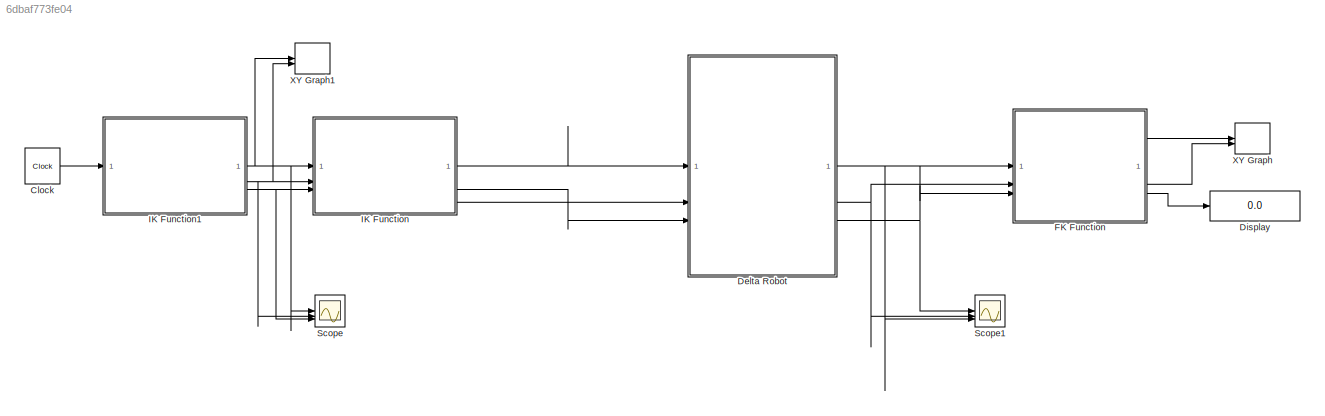
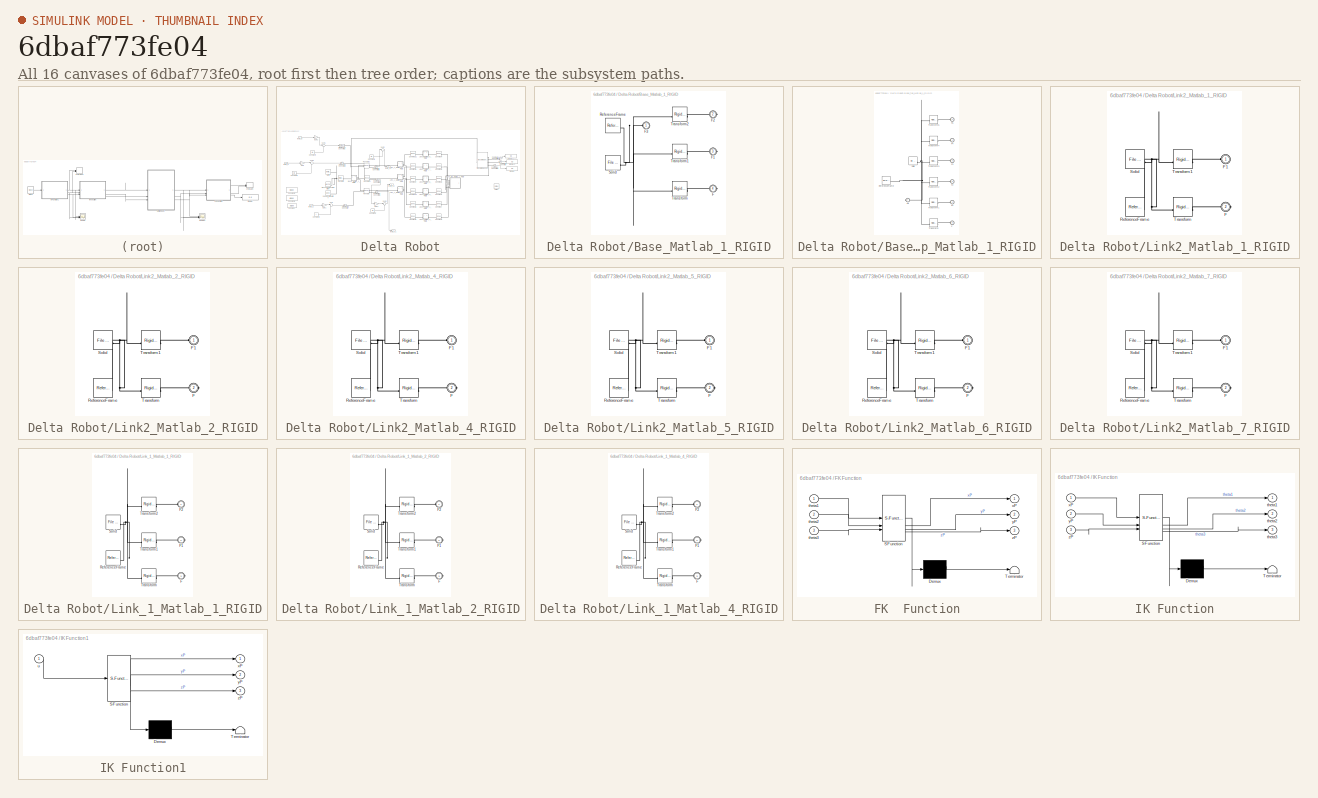
[diagram: thumbnail index - all 16 canvases of the model, root first then tree order]
MODEL slx_6dbaf773fe04
KIND model
CONFIG AbsTol = auto
CONFIG EnableMultiTasking = off
CONFIG FixedStep = auto
CONFIG MaxStep = auto
CONFIG MinStep = auto
CONFIG RelTol = 1
CONFIG SampleTimeConstraint = Unconstrained
CONFIG SolverName = VariableStepAuto
CONFIG StartTime = 0.0
CONFIG StopTime = 20
WORKSPACE source: external: MATLAB File  (data not in archive)
BLOCK [Clock] Clock
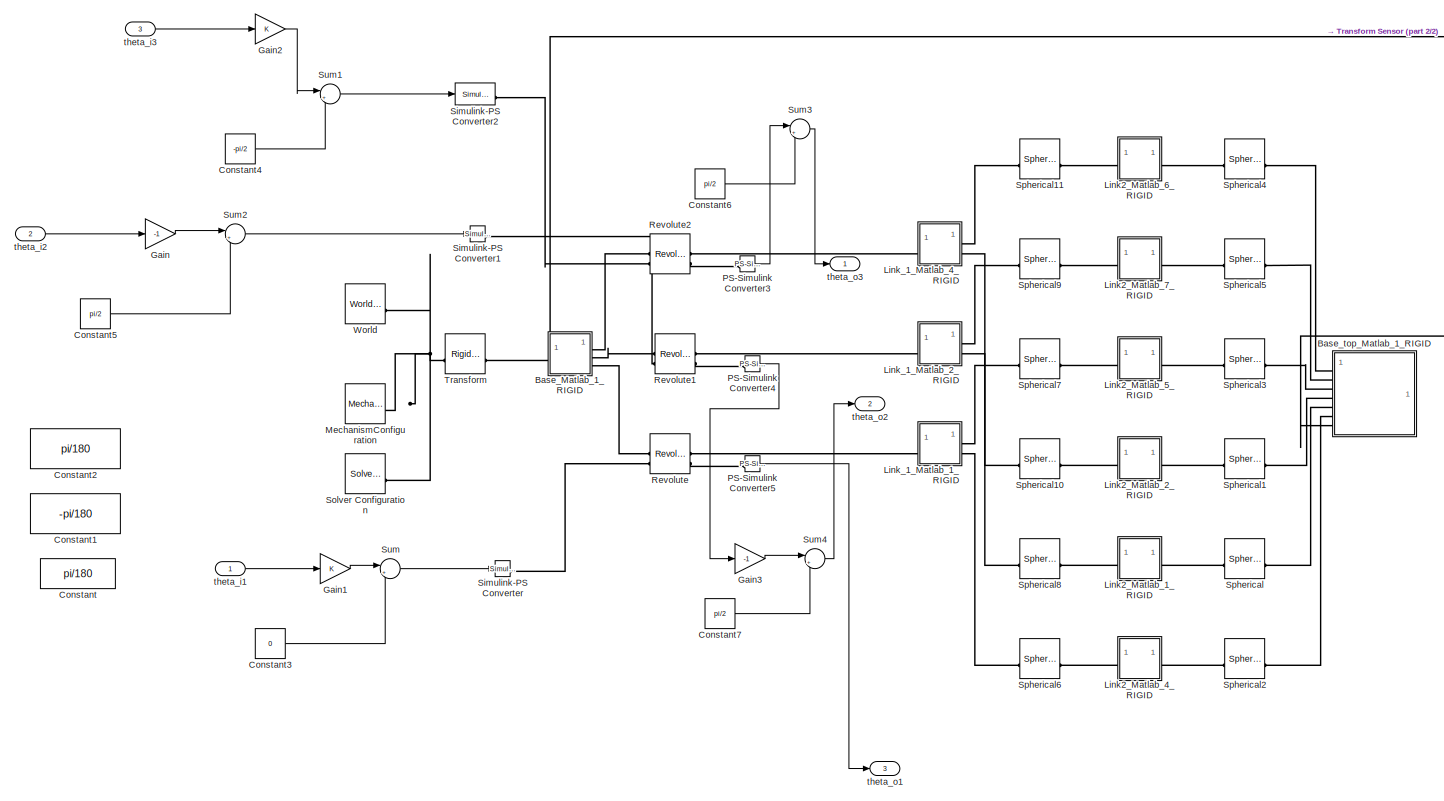
[diagram: Delta Robot - part 1/2, most of the canvas]
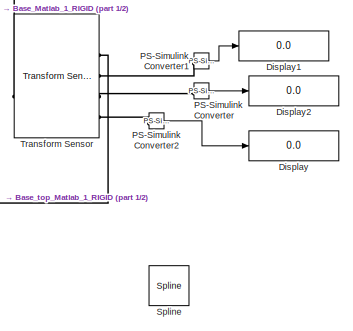
[diagram: Delta Robot - part 2/2, middle right region]
BLOCK [SubSystem] Delta Robot
BLOCK [SubSystem] Delta Robot/Base_Matlab_1_RIGID
BLOCK [PMIOPort] Delta Robot/Base_Matlab_1_RIGID/F
  Port = 4
  Side = Right
BLOCK [PMIOPort] Delta Robot/Base_Matlab_1_RIGID/F1
  Port = 3
  Side = Right
BLOCK [PMIOPort] Delta Robot/Base_Matlab_1_RIGID/F2
  Port = 2
  Side = Right
BLOCK [PMIOPort] Delta Robot/Base_Matlab_1_RIGID/F3
  Side = Left
BLOCK [Reference] Delta Robot/Base_Matlab_1_RIGID/ReferenceFrame  REF=sm_lib/Frames and
Transforms/Reference
Frame
  SourceBlock = sm_lib/Frames and\nTransforms/Reference\nFrame
  SourceType = Reference\nFrame
BLOCK [Reference] Delta Robot/Base_Matlab_1_RIGID/Solid  REF=sm_lib/Body Elements/File Solid
  SourceBlock = sm_lib/Body Elements/File Solid
  SourceType = File Solid
BLOCK [Reference] Delta Robot/Base_Matlab_1_RIGID/Transform  REF=sm_lib/Frames and
Transforms/Rigid
Transform
  SourceBlock = sm_lib/Frames and\nTransforms/Rigid\nTransform
  SourceType = Rigid\nTransform
BLOCK [Reference] Delta Robot/Base_Matlab_1_RIGID/Transform1  REF=sm_lib/Frames and
Transforms/Rigid
Transform
  SourceBlock = sm_lib/Frames and\nTransforms/Rigid\nTransform
  SourceType = Rigid\nTransform
BLOCK [Reference] Delta Robot/Base_Matlab_1_RIGID/Transform2  REF=sm_lib/Frames and
Transforms/Rigid
Transform
  SourceBlock = sm_lib/Frames and\nTransforms/Rigid\nTransform
  SourceType = Rigid\nTransform
BLOCK [SubSystem] Delta Robot/Base_top_Matlab_1_RIGID
BLOCK [PMIOPort] Delta Robot/Base_top_Matlab_1_RIGID/F
  Port = 5
  Side = Left
BLOCK [PMIOPort] Delta Robot/Base_top_Matlab_1_RIGID/F1
  Port = 4
  Side = Left
BLOCK [PMIOPort] Delta Robot/Base_top_Matlab_1_RIGID/F2
  Port = 6
  Side = Left
BLOCK [PMIOPort] Delta Robot/Base_top_Matlab_1_RIGID/F3
  Port = 3
  Side = Left
BLOCK [PMIOPort] Delta Robot/Base_top_Matlab_1_RIGID/F4
  Side = Left
BLOCK [PMIOPort] Delta Robot/Base_top_Matlab_1_RIGID/F5
  Port = 2
  Side = Left
BLOCK [PMIOPort] Delta Robot/Base_top_Matlab_1_RIGID/F6
  Port = 7
  Side = Left
BLOCK [Reference] Delta Robot/Base_top_Matlab_1_RIGID/ReferenceFrame  REF=sm_lib/Frames and
Transforms/Reference
Frame
  SourceBlock = sm_lib/Frames and\nTransforms/Reference\nFrame
  SourceType = Reference\nFrame
BLOCK [Reference] Delta Robot/Base_top_Matlab_1_RIGID/Solid  REF=sm_lib/Body Elements/File Solid
  SourceBlock = sm_lib/Body Elements/File Solid
  SourceType = File Solid
BLOCK [Reference] Delta Robot/Base_top_Matlab_1_RIGID/Transform  REF=sm_lib/Frames and
Transforms/Rigid
Transform
  SourceBlock = sm_lib/Frames and\nTransforms/Rigid\nTransform
  SourceType = Rigid\nTransform
BLOCK [Reference] Delta Robot/Base_top_Matlab_1_RIGID/Transform1  REF=sm_lib/Frames and
Transforms/Rigid
Transform
  SourceBlock = sm_lib/Frames and\nTransforms/Rigid\nTransform
  SourceType = Rigid\nTransform
BLOCK [Reference] Delta Robot/Base_top_Matlab_1_RIGID/Transform2  REF=sm_lib/Frames and
Transforms/Rigid
Transform
  SourceBlock = sm_lib/Frames and\nTransforms/Rigid\nTransform
  SourceType = Rigid\nTransform
BLOCK [Reference] Delta Robot/Base_top_Matlab_1_RIGID/Transform3  REF=sm_lib/Frames and
Transforms/Rigid
Transform
  SourceBlock = sm_lib/Frames and\nTransforms/Rigid\nTransform
  SourceType = Rigid\nTransform
BLOCK [Reference] Delta Robot/Base_top_Matlab_1_RIGID/Transform4  REF=sm_lib/Frames and
Transforms/Rigid
Transform
  SourceBlock = sm_lib/Frames and\nTransforms/Rigid\nTransform
  SourceType = Rigid\nTransform
BLOCK [Reference] Delta Robot/Base_top_Matlab_1_RIGID/Transform5  REF=sm_lib/Frames and
Transforms/Rigid
Transform
  SourceBlock = sm_lib/Frames and\nTransforms/Rigid\nTransform
  SourceType = Rigid\nTransform
BLOCK [Constant] Delta Robot/Constant
  Commented = on
  Value = pi/180
BLOCK [Constant] Delta Robot/Constant1
  Commented = on
  Value = -pi/180
BLOCK [Constant] Delta Robot/Constant2
  Commented = on
  Value = pi/180
BLOCK [Constant] Delta Robot/Constant3
  Value = 0
BLOCK [Constant] Delta Robot/Constant4
  Value = -pi/2
BLOCK [Constant] Delta Robot/Constant5
  Value = pi/2
BLOCK [Constant] Delta Robot/Constant6
  Value = pi/2
BLOCK [Constant] Delta Robot/Constant7
  Value = pi/2
BLOCK [Display] Delta Robot/Display
  Decimation = 1
BLOCK [Display] Delta Robot/Display1
  Decimation = 1
BLOCK [Display] Delta Robot/Display2
  Decimation = 1
BLOCK [Gain] Delta Robot/Gain
  Gain = -1
BLOCK [Gain] Delta Robot/Gain1
BLOCK [Gain] Delta Robot/Gain2
BLOCK [Gain] Delta Robot/Gain3
  Gain = -1
BLOCK [SubSystem] Delta Robot/Link2_Matlab_1_RIGID
BLOCK [PMIOPort] Delta Robot/Link2_Matlab_1_RIGID/F
  Port = 2
  Side = Right
BLOCK [PMIOPort] Delta Robot/Link2_Matlab_1_RIGID/F1
  Side = Left
BLOCK [Reference] Delta Robot/Link2_Matlab_1_RIGID/ReferenceFrame  REF=sm_lib/Frames and
Transforms/Reference
Frame
  SourceBlock = sm_lib/Frames and\nTransforms/Reference\nFrame
  SourceType = Reference\nFrame
BLOCK [Reference] Delta Robot/Link2_Matlab_1_RIGID/Solid  REF=sm_lib/Body Elements/File Solid
  SourceBlock = sm_lib/Body Elements/File Solid
  SourceType = File Solid
BLOCK [Reference] Delta Robot/Link2_Matlab_1_RIGID/Transform  REF=sm_lib/Frames and
Transforms/Rigid
Transform
  SourceBlock = sm_lib/Frames and\nTransforms/Rigid\nTransform
  SourceType = Rigid\nTransform
BLOCK [Reference] Delta Robot/Link2_Matlab_1_RIGID/Transform1  REF=sm_lib/Frames and
Transforms/Rigid
Transform
  SourceBlock = sm_lib/Frames and\nTransforms/Rigid\nTransform
  SourceType = Rigid\nTransform
BLOCK [SubSystem] Delta Robot/Link2_Matlab_2_RIGID
BLOCK [PMIOPort] Delta Robot/Link2_Matlab_2_RIGID/F
  Port = 2
  Side = Right
BLOCK [PMIOPort] Delta Robot/Link2_Matlab_2_RIGID/F1
  Side = Left
BLOCK [Reference] Delta Robot/Link2_Matlab_2_RIGID/ReferenceFrame  REF=sm_lib/Frames and
Transforms/Reference
Frame
  SourceBlock = sm_lib/Frames and\nTransforms/Reference\nFrame
  SourceType = Reference\nFrame
BLOCK [Reference] Delta Robot/Link2_Matlab_2_RIGID/Solid  REF=sm_lib/Body Elements/File Solid
  SourceBlock = sm_lib/Body Elements/File Solid
  SourceType = File Solid
BLOCK [Reference] Delta Robot/Link2_Matlab_2_RIGID/Transform  REF=sm_lib/Frames and
Transforms/Rigid
Transform
  SourceBlock = sm_lib/Frames and\nTransforms/Rigid\nTransform
  SourceType = Rigid\nTransform
BLOCK [Reference] Delta Robot/Link2_Matlab_2_RIGID/Transform1  REF=sm_lib/Frames and
Transforms/Rigid
Transform
  SourceBlock = sm_lib/Frames and\nTransforms/Rigid\nTransform
  SourceType = Rigid\nTransform
BLOCK [SubSystem] Delta Robot/Link2_Matlab_4_RIGID
BLOCK [PMIOPort] Delta Robot/Link2_Matlab_4_RIGID/F
  Port = 2
  Side = Right
BLOCK [PMIOPort] Delta Robot/Link2_Matlab_4_RIGID/F1
  Side = Left
BLOCK [Reference] Delta Robot/Link2_Matlab_4_RIGID/ReferenceFrame  REF=sm_lib/Frames and
Transforms/Reference
Frame
  SourceBlock = sm_lib/Frames and\nTransforms/Reference\nFrame
  SourceType = Reference\nFrame
BLOCK [Reference] Delta Robot/Link2_Matlab_4_RIGID/Solid  REF=sm_lib/Body Elements/File Solid
  SourceBlock = sm_lib/Body Elements/File Solid
  SourceType = File Solid
BLOCK [Reference] Delta Robot/Link2_Matlab_4_RIGID/Transform  REF=sm_lib/Frames and
Transforms/Rigid
Transform
  SourceBlock = sm_lib/Frames and\nTransforms/Rigid\nTransform
  SourceType = Rigid\nTransform
BLOCK [Reference] Delta Robot/Link2_Matlab_4_RIGID/Transform1  REF=sm_lib/Frames and
Transforms/Rigid
Transform
  SourceBlock = sm_lib/Frames and\nTransforms/Rigid\nTransform
  SourceType = Rigid\nTransform
BLOCK [SubSystem] Delta Robot/Link2_Matlab_5_RIGID
BLOCK [PMIOPort] Delta Robot/Link2_Matlab_5_RIGID/F
  Port = 2
  Side = Right
BLOCK [PMIOPort] Delta Robot/Link2_Matlab_5_RIGID/F1
  Side = Left
BLOCK [Reference] Delta Robot/Link2_Matlab_5_RIGID/ReferenceFrame  REF=sm_lib/Frames and
Transforms/Reference
Frame
  SourceBlock = sm_lib/Frames and\nTransforms/Reference\nFrame
  SourceType = Reference\nFrame
BLOCK [Reference] Delta Robot/Link2_Matlab_5_RIGID/Solid  REF=sm_lib/Body Elements/File Solid
  SourceBlock = sm_lib/Body Elements/File Solid
  SourceType = File Solid
BLOCK [Reference] Delta Robot/Link2_Matlab_5_RIGID/Transform  REF=sm_lib/Frames and
Transforms/Rigid
Transform
  SourceBlock = sm_lib/Frames and\nTransforms/Rigid\nTransform
  SourceType = Rigid\nTransform
BLOCK [Reference] Delta Robot/Link2_Matlab_5_RIGID/Transform1  REF=sm_lib/Frames and
Transforms/Rigid
Transform
  SourceBlock = sm_lib/Frames and\nTransforms/Rigid\nTransform
  SourceType = Rigid\nTransform
BLOCK [SubSystem] Delta Robot/Link2_Matlab_6_RIGID
BLOCK [PMIOPort] Delta Robot/Link2_Matlab_6_RIGID/F
  Port = 2
  Side = Right
BLOCK [PMIOPort] Delta Robot/Link2_Matlab_6_RIGID/F1
  Side = Left
BLOCK [Reference] Delta Robot/Link2_Matlab_6_RIGID/ReferenceFrame  REF=sm_lib/Frames and
Transforms/Reference
Frame
  SourceBlock = sm_lib/Frames and\nTransforms/Reference\nFrame
  SourceType = Reference\nFrame
BLOCK [Reference] Delta Robot/Link2_Matlab_6_RIGID/Solid  REF=sm_lib/Body Elements/File Solid
  SourceBlock = sm_lib/Body Elements/File Solid
  SourceType = File Solid
BLOCK [Reference] Delta Robot/Link2_Matlab_6_RIGID/Transform  REF=sm_lib/Frames and
Transforms/Rigid
Transform
  SourceBlock = sm_lib/Frames and\nTransforms/Rigid\nTransform
  SourceType = Rigid\nTransform
BLOCK [Reference] Delta Robot/Link2_Matlab_6_RIGID/Transform1  REF=sm_lib/Frames and
Transforms/Rigid
Transform
  SourceBlock = sm_lib/Frames and\nTransforms/Rigid\nTransform
  SourceType = Rigid\nTransform
BLOCK [SubSystem] Delta Robot/Link2_Matlab_7_RIGID
BLOCK [PMIOPort] Delta Robot/Link2_Matlab_7_RIGID/F
  Port = 2
  Side = Right
BLOCK [PMIOPort] Delta Robot/Link2_Matlab_7_RIGID/F1
  Side = Left
BLOCK [Reference] Delta Robot/Link2_Matlab_7_RIGID/ReferenceFrame  REF=sm_lib/Frames and
Transforms/Reference
Frame
  SourceBlock = sm_lib/Frames and\nTransforms/Reference\nFrame
  SourceType = Reference\nFrame
BLOCK [Reference] Delta Robot/Link2_Matlab_7_RIGID/Solid  REF=sm_lib/Body Elements/File Solid
  SourceBlock = sm_lib/Body Elements/File Solid
  SourceType = File Solid
BLOCK [Reference] Delta Robot/Link2_Matlab_7_RIGID/Transform  REF=sm_lib/Frames and
Transforms/Rigid
Transform
  SourceBlock = sm_lib/Frames and\nTransforms/Rigid\nTransform
  SourceType = Rigid\nTransform
BLOCK [Reference] Delta Robot/Link2_Matlab_7_RIGID/Transform1  REF=sm_lib/Frames and
Transforms/Rigid
Transform
  SourceBlock = sm_lib/Frames and\nTransforms/Rigid\nTransform
  SourceType = Rigid\nTransform
BLOCK [SubSystem] Delta Robot/Link_1_Matlab_1_RIGID
BLOCK [PMIOPort] Delta Robot/Link_1_Matlab_1_RIGID/F
  Port = 3
  Side = Right
BLOCK [PMIOPort] Delta Robot/Link_1_Matlab_1_RIGID/F1
  Port = 2
  Side = Right
BLOCK [PMIOPort] Delta Robot/Link_1_Matlab_1_RIGID/F2
  Side = Left
BLOCK [Reference] Delta Robot/Link_1_Matlab_1_RIGID/ReferenceFrame  REF=sm_lib/Frames and
Transforms/Reference
Frame
  SourceBlock = sm_lib/Frames and\nTransforms/Reference\nFrame
  SourceType = Reference\nFrame
BLOCK [Reference] Delta Robot/Link_1_Matlab_1_RIGID/Solid  REF=sm_lib/Body Elements/File Solid
  SourceBlock = sm_lib/Body Elements/File Solid
  SourceType = File Solid
BLOCK [Reference] Delta Robot/Link_1_Matlab_1_RIGID/Transform  REF=sm_lib/Frames and
Transforms/Rigid
Transform
  SourceBlock = sm_lib/Frames and\nTransforms/Rigid\nTransform
  SourceType = Rigid\nTransform
BLOCK [Reference] Delta Robot/Link_1_Matlab_1_RIGID/Transform1  REF=sm_lib/Frames and
Transforms/Rigid
Transform
  SourceBlock = sm_lib/Frames and\nTransforms/Rigid\nTransform
  SourceType = Rigid\nTransform
BLOCK [Reference] Delta Robot/Link_1_Matlab_1_RIGID/Transform2  REF=sm_lib/Frames and
Transforms/Rigid
Transform
  SourceBlock = sm_lib/Frames and\nTransforms/Rigid\nTransform
  SourceType = Rigid\nTransform
BLOCK [SubSystem] Delta Robot/Link_1_Matlab_2_RIGID
BLOCK [PMIOPort] Delta Robot/Link_1_Matlab_2_RIGID/F
  Port = 3
  Side = Right
BLOCK [PMIOPort] Delta Robot/Link_1_Matlab_2_RIGID/F1
  Port = 2
  Side = Right
BLOCK [PMIOPort] Delta Robot/Link_1_Matlab_2_RIGID/F2
  Side = Left
BLOCK [Reference] Delta Robot/Link_1_Matlab_2_RIGID/ReferenceFrame  REF=sm_lib/Frames and
Transforms/Reference
Frame
  SourceBlock = sm_lib/Frames and\nTransforms/Reference\nFrame
  SourceType = Reference\nFrame
BLOCK [Reference] Delta Robot/Link_1_Matlab_2_RIGID/Solid  REF=sm_lib/Body Elements/File Solid
  SourceBlock = sm_lib/Body Elements/File Solid
  SourceType = File Solid
BLOCK [Reference] Delta Robot/Link_1_Matlab_2_RIGID/Transform  REF=sm_lib/Frames and
Transforms/Rigid
Transform
  SourceBlock = sm_lib/Frames and\nTransforms/Rigid\nTransform
  SourceType = Rigid\nTransform
BLOCK [Reference] Delta Robot/Link_1_Matlab_2_RIGID/Transform1  REF=sm_lib/Frames and
Transforms/Rigid
Transform
  SourceBlock = sm_lib/Frames and\nTransforms/Rigid\nTransform
  SourceType = Rigid\nTransform
BLOCK [Reference] Delta Robot/Link_1_Matlab_2_RIGID/Transform2  REF=sm_lib/Frames and
Transforms/Rigid
Transform
  SourceBlock = sm_lib/Frames and\nTransforms/Rigid\nTransform
  SourceType = Rigid\nTransform
BLOCK [SubSystem] Delta Robot/Link_1_Matlab_4_RIGID
BLOCK [PMIOPort] Delta Robot/Link_1_Matlab_4_RIGID/F
  Port = 3
  Side = Right
BLOCK [PMIOPort] Delta Robot/Link_1_Matlab_4_RIGID/F1
  Port = 2
  Side = Right
BLOCK [PMIOPort] Delta Robot/Link_1_Matlab_4_RIGID/F2
  Side = Left
BLOCK [Reference] Delta Robot/Link_1_Matlab_4_RIGID/ReferenceFrame  REF=sm_lib/Frames and
Transforms/Reference
Frame
  SourceBlock = sm_lib/Frames and\nTransforms/Reference\nFrame
  SourceType = Reference\nFrame
BLOCK [Reference] Delta Robot/Link_1_Matlab_4_RIGID/Solid  REF=sm_lib/Body Elements/File Solid
  SourceBlock = sm_lib/Body Elements/File Solid
  SourceType = File Solid
BLOCK [Reference] Delta Robot/Link_1_Matlab_4_RIGID/Transform  REF=sm_lib/Frames and
Transforms/Rigid
Transform
  SourceBlock = sm_lib/Frames and\nTransforms/Rigid\nTransform
  SourceType = Rigid\nTransform
BLOCK [Reference] Delta Robot/Link_1_Matlab_4_RIGID/Transform1  REF=sm_lib/Frames and
Transforms/Rigid
Transform
  SourceBlock = sm_lib/Frames and\nTransforms/Rigid\nTransform
  SourceType = Rigid\nTransform
BLOCK [Reference] Delta Robot/Link_1_Matlab_4_RIGID/Transform2  REF=sm_lib/Frames and
Transforms/Rigid
Transform
  SourceBlock = sm_lib/Frames and\nTransforms/Rigid\nTransform
  SourceType = Rigid\nTransform
BLOCK [Reference] Delta Robot/MechanismConfiguration  REF=sm_lib/Utilities/Mechanism
Configuration
  SourceBlock = sm_lib/Utilities/Mechanism\nConfiguration
  SourceType = Mechanism\nConfiguration
BLOCK [Reference] Delta Robot/PS-Simulink Converter  REF=nesl_utility/PS-Simulink
Converter
  SourceBlock = nesl_utility/PS-Simulink\nConverter
  SourceType = PS-Simulink\nConverter
BLOCK [Reference] Delta Robot/PS-Simulink Converter1  REF=nesl_utility/PS-Simulink
Converter
  SourceBlock = nesl_utility/PS-Simulink\nConverter
  SourceType = PS-Simulink\nConverter
BLOCK [Reference] Delta Robot/PS-Simulink Converter2  REF=nesl_utility/PS-Simulink
Converter
  SourceBlock = nesl_utility/PS-Simulink\nConverter
  SourceType = PS-Simulink\nConverter
BLOCK [Reference] Delta Robot/PS-Simulink Converter3  REF=nesl_utility/PS-Simulink
Converter
  SourceBlock = nesl_utility/PS-Simulink\nConverter
  SourceType = PS-Simulink\nConverter
BLOCK [Reference] Delta Robot/PS-Simulink Converter4  REF=nesl_utility/PS-Simulink
Converter
  SourceBlock = nesl_utility/PS-Simulink\nConverter
  SourceType = PS-Simulink\nConverter
BLOCK [Reference] Delta Robot/PS-Simulink Converter5  REF=nesl_utility/PS-Simulink
Converter
  SourceBlock = nesl_utility/PS-Simulink\nConverter
  SourceType = PS-Simulink\nConverter
BLOCK [Reference] Delta Robot/Revolute  REF=sm_lib/Joints/Revolute Joint
  SourceBlock = sm_lib/Joints/Revolute Joint
  SourceType = Revolute Joint
BLOCK [Reference] Delta Robot/Revolute1  REF=sm_lib/Joints/Revolute Joint
  SourceBlock = sm_lib/Joints/Revolute Joint
  SourceType = Revolute Joint
BLOCK [Reference] Delta Robot/Revolute2  REF=sm_lib/Joints/Revolute Joint
  SourceBlock = sm_lib/Joints/Revolute Joint
  SourceType = Revolute Joint
BLOCK [Reference] Delta Robot/Simulink-PS Converter  REF=nesl_utility/Simulink-PS
Converter
  SourceBlock = nesl_utility/Simulink-PS\nConverter
  SourceType = Simulink-PS\nConverter
BLOCK [Reference] Delta Robot/Simulink-PS Converter1  REF=nesl_utility/Simulink-PS
Converter
  SourceBlock = nesl_utility/Simulink-PS\nConverter
  SourceType = Simulink-PS\nConverter
BLOCK [Reference] Delta Robot/Simulink-PS Converter2  REF=nesl_utility/Simulink-PS
Converter
  SourceBlock = nesl_utility/Simulink-PS\nConverter
  SourceType = Simulink-PS\nConverter
BLOCK [Reference] Delta Robot/Solver Configuration  REF=nesl_utility/Solver
Configuration
  SourceBlock = nesl_utility/Solver\nConfiguration
  SourceType = Solver\nConfiguration
BLOCK [Reference] Delta Robot/Spherical  REF=sm_lib/Joints/Spherical
Joint
  SourceBlock = sm_lib/Joints/Spherical\nJoint
  SourceType = Spherical\nJoint
BLOCK [Reference] Delta Robot/Spherical1  REF=sm_lib/Joints/Spherical
Joint
  SourceBlock = sm_lib/Joints/Spherical\nJoint
  SourceType = Spherical\nJoint
BLOCK [Reference] Delta Robot/Spherical10  REF=sm_lib/Joints/Spherical
Joint
  SourceBlock = sm_lib/Joints/Spherical\nJoint
  SourceType = Spherical\nJoint
BLOCK [Reference] Delta Robot/Spherical11  REF=sm_lib/Joints/Spherical
Joint
  SourceBlock = sm_lib/Joints/Spherical\nJoint
  SourceType = Spherical\nJoint
BLOCK [Reference] Delta Robot/Spherical2  REF=sm_lib/Joints/Spherical
Joint
  SourceBlock = sm_lib/Joints/Spherical\nJoint
  SourceType = Spherical\nJoint
BLOCK [Reference] Delta Robot/Spherical3  REF=sm_lib/Joints/Spherical
Joint
  SourceBlock = sm_lib/Joints/Spherical\nJoint
  SourceType = Spherical\nJoint
BLOCK [Reference] Delta Robot/Spherical4  REF=sm_lib/Joints/Spherical
Joint
  SourceBlock = sm_lib/Joints/Spherical\nJoint
  SourceType = Spherical\nJoint
BLOCK [Reference] Delta Robot/Spherical5  REF=sm_lib/Joints/Spherical
Joint
  SourceBlock = sm_lib/Joints/Spherical\nJoint
  SourceType = Spherical\nJoint
BLOCK [Reference] Delta Robot/Spherical6  REF=sm_lib/Joints/Spherical
Joint
  SourceBlock = sm_lib/Joints/Spherical\nJoint
  SourceType = Spherical\nJoint
BLOCK [Reference] Delta Robot/Spherical7  REF=sm_lib/Joints/Spherical
Joint
  SourceBlock = sm_lib/Joints/Spherical\nJoint
  SourceType = Spherical\nJoint
BLOCK [Reference] Delta Robot/Spherical8  REF=sm_lib/Joints/Spherical
Joint
  SourceBlock = sm_lib/Joints/Spherical\nJoint
  SourceType = Spherical\nJoint
BLOCK [Reference] Delta Robot/Spherical9  REF=sm_lib/Joints/Spherical
Joint
  SourceBlock = sm_lib/Joints/Spherical\nJoint
  SourceType = Spherical\nJoint
BLOCK [Reference] Delta Robot/Spline  REF=sm_lib/Curves and Surfaces/Spline
  Commented = on
  SourceBlock = sm_lib/Curves and Surfaces/Spline
  SourceType = Spline
BLOCK [Sum] Delta Robot/Sum
  Inputs = |++
BLOCK [Sum] Delta Robot/Sum1
  Inputs = |++
BLOCK [Sum] Delta Robot/Sum2
  Inputs = |++
BLOCK [Sum] Delta Robot/Sum3
  Inputs = |++
BLOCK [Sum] Delta Robot/Sum4
  Inputs = |++
BLOCK [Reference] Delta Robot/Transform  REF=sm_lib/Frames and
Transforms/Rigid
Transform
  SourceBlock = sm_lib/Frames and\nTransforms/Rigid\nTransform
  SourceType = Rigid\nTransform
BLOCK [Reference] Delta Robot/Transform Sensor  REF=sm_lib/Frames and
Transforms/Transform
Sensor
  SourceBlock = sm_lib/Frames and\nTransforms/Transform\nSensor
  SourceType = Transform\nSensor
BLOCK [Reference] Delta Robot/World  REF=sm_lib/Frames and
Transforms/World Frame
  SourceBlock = sm_lib/Frames and\nTransforms/World Frame
  SourceType = World Frame
BLOCK [Inport] Delta Robot/theta_i1
BLOCK [Inport] Delta Robot/theta_i2
  Port = 2
BLOCK [Inport] Delta Robot/theta_i3
  Port = 3
BLOCK [Outport] Delta Robot/theta_o1
  Port = 3
BLOCK [Outport] Delta Robot/theta_o2
  Port = 2
BLOCK [Outport] Delta Robot/theta_o3
BLOCK [Display] Display
  Decimation = 1
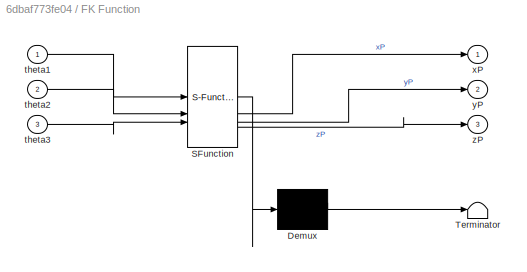
BLOCK [SubSystem] FK  Function
  ErrorFcn = Stateflow.Translate.translate
  LibrarySourceBlock = simulink/User-Defined\nFunctions/MATLAB Function
  PermitHierarchicalResolution = ExplicitOnly
  SFBlockType = MATLAB Function
  TreatAsAtomicUnit = on
BLOCK [Demux] FK  Function/ Demux 
  Outputs = 1
BLOCK [S-Function] FK  Function/ SFunction 
  EnableBusSupport = on
  FunctionName = sf_sfun
  PortCounts = [3 4]
  SFcnIsStateOwnerBlock = off
  SFunctionDeploymentMode = off
  Tag = Stateflow S-Function 1
BLOCK [Terminator] FK  Function/ Terminator 
BLOCK [Inport] FK  Function/theta1
BLOCK [Inport] FK  Function/theta2
  Port = 2
BLOCK [Inport] FK  Function/theta3
  Port = 3
BLOCK [Outport] FK  Function/xP
BLOCK [Outport] FK  Function/yP
  Port = 2
BLOCK [Outport] FK  Function/zP
  Port = 3
BLOCK [SubSystem] IK Function
  ErrorFcn = Stateflow.Translate.translate
  LibrarySourceBlock = simulink/User-Defined\nFunctions/MATLAB Function
  PermitHierarchicalResolution = ExplicitOnly
  SFBlockType = MATLAB Function
  TreatAsAtomicUnit = on
BLOCK [Demux] IK Function/ Demux 
  Outputs = 1
BLOCK [S-Function] IK Function/ SFunction 
  EnableBusSupport = on
  FunctionName = sf_sfun
  PortCounts = [3 4]
  SFcnIsStateOwnerBlock = off
  SFunctionDeploymentMode = off
  Tag = Stateflow S-Function 2
BLOCK [Terminator] IK Function/ Terminator 
BLOCK [Outport] IK Function/theta1
BLOCK [Outport] IK Function/theta2
  Port = 2
BLOCK [Outport] IK Function/theta3
  Port = 3
BLOCK [Inport] IK Function/xP
BLOCK [Inport] IK Function/yP
  Port = 2
BLOCK [Inport] IK Function/zP
  Port = 3
BLOCK [SubSystem] IK Function1
  ErrorFcn = Stateflow.Translate.translate
  LibrarySourceBlock = simulink/User-Defined\nFunctions/MATLAB Function
  PermitHierarchicalResolution = ExplicitOnly
  SFBlockType = MATLAB Function
  TreatAsAtomicUnit = on
BLOCK [Demux] IK Function1/ Demux 
  Outputs = 1
BLOCK [S-Function] IK Function1/ SFunction 
  EnableBusSupport = on
  FunctionName = sf_sfun
  PortCounts = [1 4]
  SFcnIsStateOwnerBlock = off
  SFunctionDeploymentMode = off
  Tag = Stateflow S-Function 3
BLOCK [Terminator] IK Function1/ Terminator 
BLOCK [Inport] IK Function1/u
BLOCK [Outport] IK Function1/xP
BLOCK [Outport] IK Function1/yP
  Port = 2
BLOCK [Outport] IK Function1/zP
  Port = 3
BLOCK [Scope] Scope
  Floating = off
  NumInputPorts = 3
  ScopeSpecificationString = Simulink.scopes.TimeScopeBlockCfg('CurrentConfiguration', extmgr.ConfigurationSet(extmgr.Configuration('Core','General UI',true),extmgr.Configuration('Core','Source UI',true),extmgr.Configuration('Sources','WiredSimulink',true),extmgr.Configuration('Visuals','Time Domain',true,'SerializedDisplays',{struct('MinYLimReal','-218.75','MaxYLimReal','468.75','YLabelReal','','MinYLimMag',' 0.00000','MaxYL...<+1398ch>
BLOCK [Scope] Scope1
  Floating = off
  NumInputPorts = 3
  ScopeSpecificationString = Simulink.scopes.TimeScopeBlockCfg('CurrentConfiguration', extmgr.ConfigurationSet(extmgr.Configuration('Core','General UI',true),extmgr.Configuration('Core','Source UI',true),extmgr.Configuration('Sources','WiredSimulink',true,'DataLoggingVariableName','ScopeData1'),extmgr.Configuration('Visuals','Time Domain',true,'SerializedDisplays',{struct('MinYLimReal','-0.07245','MaxYLimReal','1.34148','YLab...<+1435ch>
BLOCK [Record] XY Graph
  CompatibilityTag = XY
  FileSettingsInternal = {"entries":[{"content":{"excelSettings":{"content":{},"type":"Streamout.ExcelSettings"}},"type":"Streamout.FileSettingStorage","uuid":"665fa76d-6bd3-42a9-ad04-b12fa81dc9fd"}],"packageUris":["http://schema.mathworks.com/mf0/streamout_blocks/R2020a"],"version":"1.0"}
  Layout = [1 1]
  SignalsInternal = {"entries":[{"content":{"signals":[{"content":{"blockPath":["AssemRobot_Matlab/XY Graph"],"channel":[],"dimensions":[1],"domain":"AssemRobot_Matlab/XY Graph","lineColor":"#a2142f","plots":[1],"port":1,"sid":[],"signalID":34,"signalName":"FK  Function:1"},"type":"RecordBlkView.Signal","uuid":"0861905a-a43d-4e1e-a64f-b802dd22c433"},{"content":{"blockPath":["AssemRobot_Matlab/XY Graph"],"channel":[],...<+405ch>
  VisualizationBindings = {"xyplotplugin":{"info":[{"series":[{"bindingParametersList":[{"parameter":"X-Axis","signalID":34,"signalName":"FK  Function:1"},{"parameter":"Y-Axis","signalID":37,"signalName":"FK  Function:2"}],"seriesID":19174}],"subplotID":1}]}}
BLOCK [Record] XY Graph1
  CompatibilityTag = XY
  FileSettingsInternal = {"entries":[{"content":{"excelSettings":{"content":{},"type":"Streamout.ExcelSettings"}},"type":"Streamout.FileSettingStorage","uuid":"9080ddfd-3556-46a2-b28a-20a23e014fd5"}],"packageUris":["http://schema.mathworks.com/mf0/streamout_blocks/R2020a"],"version":"1.0"}
  Layout = [1 1]
  SignalsInternal = {"entries":[{"content":{"signals":[{"content":{"blockPath":["AssemRobot_Matlab/XY Graph1"],"channel":[],"dimensions":[1],"domain":"AssemRobot_Matlab/XY Graph1","lineColor":"#a2142f","plots":[1],"port":1,"sid":[],"signalID":26,"signalName":"IK Function1:1"},"type":"RecordBlkView.Signal","uuid":"1f8cc3ca-d340-4894-841e-b91cd74681c7"},{"content":{"blockPath":["AssemRobot_Matlab/XY Graph1"],"channel":...<+409ch>
  VisualizationBindings = {"xyplotplugin":{"info":[{"series":[{"bindingParametersList":[{"parameter":"X-Axis","signalID":26,"signalName":"IK Function1:1"},{"parameter":"Y-Axis","signalID":29,"signalName":"IK Function1:2"}],"seriesID":18738}],"subplotID":1}]}}
LINE Clock:1 -> IK Function1:1
LINE Delta Robot/Constant3:1 -> Delta Robot/Sum:2
LINE Delta Robot/Constant4:1 -> Delta Robot/Sum1:2
LINE Delta Robot/Constant5:1 -> Delta Robot/Sum2:2
LINE Delta Robot/Constant6:1 -> Delta Robot/Sum3:2
LINE Delta Robot/Constant7:1 -> Delta Robot/Sum4:2
LINE Delta Robot/Gain1:1 -> Delta Robot/Sum:1
LINE Delta Robot/Gain2:1 -> Delta Robot/Sum1:1
LINE Delta Robot/Gain3:1 -> Delta Robot/Sum4:1
LINE Delta Robot/Gain:1 -> Delta Robot/Sum2:1
LINE Delta Robot/PS-Simulink Converter1:1 -> Delta Robot/Display1:1
LINE Delta Robot/PS-Simulink Converter2:1 -> Delta Robot/Display:1
LINE Delta Robot/PS-Simulink Converter3:1 -> Delta Robot/Sum3:1
LINE Delta Robot/PS-Simulink Converter4:1 -> Delta Robot/Gain3:1
LINE Delta Robot/PS-Simulink Converter5:1 -> Delta Robot/theta_o1:1
LINE Delta Robot/PS-Simulink Converter:1 -> Delta Robot/Display2:1
LINE Delta Robot/Sum1:1 -> Delta Robot/Simulink-PS Converter2:1
LINE Delta Robot/Sum2:1 -> Delta Robot/Simulink-PS Converter1:1
LINE Delta Robot/Sum3:1 -> Delta Robot/theta_o3:1
LINE Delta Robot/Sum4:1 -> Delta Robot/theta_o2:1
LINE Delta Robot/Sum:1 -> Delta Robot/Simulink-PS Converter:1
LINE Delta Robot/theta_i1:1 -> Delta Robot/Gain1:1
LINE Delta Robot/theta_i2:1 -> Delta Robot/Gain:1
LINE Delta Robot/theta_i3:1 -> Delta Robot/Gain2:1
NET Delta Robot:1 -> FK  Function:1, Scope1:3
NET Delta Robot:2 -> FK  Function:2, Scope1:2
NET Delta Robot:3 -> FK  Function:3, Scope1:1
LINE FK  Function:1 -> XY Graph:1
LINE FK  Function:2 -> XY Graph:2
LINE FK  Function:3 -> Display:1
NET IK Function1:1 -> IK Function:1, Scope:1, XY Graph1:1
NET IK Function1:2 -> IK Function:2, Scope:2, XY Graph1:2
NET IK Function1:3 -> IK Function:3, Scope:3
LINE IK Function:1 -> Delta Robot:1
LINE IK Function:2 -> Delta Robot:2
LINE IK Function:3 -> Delta Robot:3
PLINE Delta Robot/Base_Matlab_1_RIGID/F1:RConn1 -- Delta Robot/Base_Matlab_1_RIGID/Transform1:RConn1
PLINE Delta Robot/Base_Matlab_1_RIGID/F2:RConn1 -- Delta Robot/Base_Matlab_1_RIGID/Transform2:RConn1
PNET net1: Delta Robot/Base_Matlab_1_RIGID/F3:RConn1 -- Delta Robot/Base_Matlab_1_RIGID/ReferenceFrame:RConn1 -- Delta Robot/Base_Matlab_1_RIGID/Solid:RConn1 -- Delta Robot/Base_Matlab_1_RIGID/Transform1:LConn1 -- Delta Robot/Base_Matlab_1_RIGID/Transform2:LConn1 -- Delta Robot/Base_Matlab_1_RIGID/Transform:LConn1
PLINE Delta Robot/Base_Matlab_1_RIGID/F:RConn1 -- Delta Robot/Base_Matlab_1_RIGID/Transform:RConn1
PNET net2: Delta Robot/Base_Matlab_1_RIGID:LConn1 -- Delta Robot/Transform Sensor:LConn1 -- Delta Robot/Transform:RConn1
PLINE Delta Robot/Base_Matlab_1_RIGID:RConn1 -- Delta Robot/Revolute2:LConn1
PLINE Delta Robot/Base_Matlab_1_RIGID:RConn2 -- Delta Robot/Revolute1:LConn1
PLINE Delta Robot/Base_Matlab_1_RIGID:RConn3 -- Delta Robot/Revolute:LConn1
PLINE Delta Robot/Base_top_Matlab_1_RIGID/F1:RConn1 -- Delta Robot/Base_top_Matlab_1_RIGID/Transform1:RConn1
PLINE Delta Robot/Base_top_Matlab_1_RIGID/F2:RConn1 -- Delta Robot/Base_top_Matlab_1_RIGID/Transform2:RConn1
PLINE Delta Robot/Base_top_Matlab_1_RIGID/F3:RConn1 -- Delta Robot/Base_top_Matlab_1_RIGID/Transform3:RConn1
PLINE Delta Robot/Base_top_Matlab_1_RIGID/F4:RConn1 -- Delta Robot/Base_top_Matlab_1_RIGID/Transform4:RConn1
PLINE Delta Robot/Base_top_Matlab_1_RIGID/F5:RConn1 -- Delta Robot/Base_top_Matlab_1_RIGID/Transform5:RConn1
PNET net3: Delta Robot/Base_top_Matlab_1_RIGID/F6:RConn1 -- Delta Robot/Base_top_Matlab_1_RIGID/ReferenceFrame:RConn1 -- Delta Robot/Base_top_Matlab_1_RIGID/Solid:RConn1 -- Delta Robot/Base_top_Matlab_1_RIGID/Transform1:LConn1 -- Delta Robot/Base_top_Matlab_1_RIGID/Transform2:LConn1 -- Delta Robot/Base_top_Matlab_1_RIGID/Transform3:LConn1 -- Delta Robot/Base_top_Matlab_1_RIGID/Transform4:LConn1 -- Delta Robot/Base_top_Matlab_1_RIGID/Transform5:LConn1 -- Delta Robot/Base_top_Matlab_1_RIGID/Transform:LConn1
PLINE Delta Robot/Base_top_Matlab_1_RIGID/F:RConn1 -- Delta Robot/Base_top_Matlab_1_RIGID/Transform:RConn1
PLINE Delta Robot/Base_top_Matlab_1_RIGID:LConn1 -- Delta Robot/Spherical4:RConn1
PLINE Delta Robot/Base_top_Matlab_1_RIGID:LConn2 -- Delta Robot/Spherical5:RConn1
PLINE Delta Robot/Base_top_Matlab_1_RIGID:LConn3 -- Delta Robot/Spherical3:RConn1
PLINE Delta Robot/Base_top_Matlab_1_RIGID:LConn4 -- Delta Robot/Spherical1:RConn1
PLINE Delta Robot/Base_top_Matlab_1_RIGID:LConn5 -- Delta Robot/Spherical:RConn1
PLINE Delta Robot/Base_top_Matlab_1_RIGID:LConn6 -- Delta Robot/Spherical2:RConn1
PLINE Delta Robot/Base_top_Matlab_1_RIGID:LConn7 -- Delta Robot/Transform Sensor:RConn1
PLINE Delta Robot/Link2_Matlab_1_RIGID/F1:RConn1 -- Delta Robot/Link2_Matlab_1_RIGID/Transform1:RConn1
PLINE Delta Robot/Link2_Matlab_1_RIGID/F:RConn1 -- Delta Robot/Link2_Matlab_1_RIGID/Transform:RConn1
PNET net4: Delta Robot/Link2_Matlab_1_RIGID/ReferenceFrame:RConn1 -- Delta Robot/Link2_Matlab_1_RIGID/Solid:RConn1 -- Delta Robot/Link2_Matlab_1_RIGID/Transform1:LConn1 -- Delta Robot/Link2_Matlab_1_RIGID/Transform:LConn1
PLINE Delta Robot/Link2_Matlab_1_RIGID:LConn1 -- Delta Robot/Spherical8:RConn1
PLINE Delta Robot/Link2_Matlab_1_RIGID:RConn1 -- Delta Robot/Spherical:LConn1
PLINE Delta Robot/Link2_Matlab_2_RIGID/F1:RConn1 -- Delta Robot/Link2_Matlab_2_RIGID/Transform1:RConn1
PLINE Delta Robot/Link2_Matlab_2_RIGID/F:RConn1 -- Delta Robot/Link2_Matlab_2_RIGID/Transform:RConn1
PNET net5: Delta Robot/Link2_Matlab_2_RIGID/ReferenceFrame:RConn1 -- Delta Robot/Link2_Matlab_2_RIGID/Solid:RConn1 -- Delta Robot/Link2_Matlab_2_RIGID/Transform1:LConn1 -- Delta Robot/Link2_Matlab_2_RIGID/Transform:LConn1
PLINE Delta Robot/Link2_Matlab_2_RIGID:LConn1 -- Delta Robot/Spherical10:RConn1
PLINE Delta Robot/Link2_Matlab_2_RIGID:RConn1 -- Delta Robot/Spherical1:LConn1
PLINE Delta Robot/Link2_Matlab_4_RIGID/F1:RConn1 -- Delta Robot/Link2_Matlab_4_RIGID/Transform1:RConn1
PLINE Delta Robot/Link2_Matlab_4_RIGID/F:RConn1 -- Delta Robot/Link2_Matlab_4_RIGID/Transform:RConn1
PNET net6: Delta Robot/Link2_Matlab_4_RIGID/ReferenceFrame:RConn1 -- Delta Robot/Link2_Matlab_4_RIGID/Solid:RConn1 -- Delta Robot/Link2_Matlab_4_RIGID/Transform1:LConn1 -- Delta Robot/Link2_Matlab_4_RIGID/Transform:LConn1
PLINE Delta Robot/Link2_Matlab_4_RIGID:LConn1 -- Delta Robot/Spherical6:RConn1
PLINE Delta Robot/Link2_Matlab_4_RIGID:RConn1 -- Delta Robot/Spherical2:LConn1
PLINE Delta Robot/Link2_Matlab_5_RIGID/F1:RConn1 -- Delta Robot/Link2_Matlab_5_RIGID/Transform1:RConn1
PLINE Delta Robot/Link2_Matlab_5_RIGID/F:RConn1 -- Delta Robot/Link2_Matlab_5_RIGID/Transform:RConn1
PNET net7: Delta Robot/Link2_Matlab_5_RIGID/ReferenceFrame:RConn1 -- Delta Robot/Link2_Matlab_5_RIGID/Solid:RConn1 -- Delta Robot/Link2_Matlab_5_RIGID/Transform1:LConn1 -- Delta Robot/Link2_Matlab_5_RIGID/Transform:LConn1
PLINE Delta Robot/Link2_Matlab_5_RIGID:LConn1 -- Delta Robot/Spherical7:RConn1
PLINE Delta Robot/Link2_Matlab_5_RIGID:RConn1 -- Delta Robot/Spherical3:LConn1
PLINE Delta Robot/Link2_Matlab_6_RIGID/F1:RConn1 -- Delta Robot/Link2_Matlab_6_RIGID/Transform1:RConn1
PLINE Delta Robot/Link2_Matlab_6_RIGID/F:RConn1 -- Delta Robot/Link2_Matlab_6_RIGID/Transform:RConn1
PNET net8: Delta Robot/Link2_Matlab_6_RIGID/ReferenceFrame:RConn1 -- Delta Robot/Link2_Matlab_6_RIGID/Solid:RConn1 -- Delta Robot/Link2_Matlab_6_RIGID/Transform1:LConn1 -- Delta Robot/Link2_Matlab_6_RIGID/Transform:LConn1
PLINE Delta Robot/Link2_Matlab_6_RIGID:LConn1 -- Delta Robot/Spherical11:RConn1
PLINE Delta Robot/Link2_Matlab_6_RIGID:RConn1 -- Delta Robot/Spherical4:LConn1
PLINE Delta Robot/Link2_Matlab_7_RIGID/F1:RConn1 -- Delta Robot/Link2_Matlab_7_RIGID/Transform1:RConn1
PLINE Delta Robot/Link2_Matlab_7_RIGID/F:RConn1 -- Delta Robot/Link2_Matlab_7_RIGID/Transform:RConn1
PNET net9: Delta Robot/Link2_Matlab_7_RIGID/ReferenceFrame:RConn1 -- Delta Robot/Link2_Matlab_7_RIGID/Solid:RConn1 -- Delta Robot/Link2_Matlab_7_RIGID/Transform1:LConn1 -- Delta Robot/Link2_Matlab_7_RIGID/Transform:LConn1
PLINE Delta Robot/Link2_Matlab_7_RIGID:LConn1 -- Delta Robot/Spherical9:RConn1
PLINE Delta Robot/Link2_Matlab_7_RIGID:RConn1 -- Delta Robot/Spherical5:LConn1
PLINE Delta Robot/Link_1_Matlab_1_RIGID/F1:RConn1 -- Delta Robot/Link_1_Matlab_1_RIGID/Transform1:RConn1
PLINE Delta Robot/Link_1_Matlab_1_RIGID/F2:RConn1 -- Delta Robot/Link_1_Matlab_1_RIGID/Transform2:RConn1
PLINE Delta Robot/Link_1_Matlab_1_RIGID/F:RConn1 -- Delta Robot/Link_1_Matlab_1_RIGID/Transform:RConn1
PNET net10: Delta Robot/Link_1_Matlab_1_RIGID/ReferenceFrame:RConn1 -- Delta Robot/Link_1_Matlab_1_RIGID/Solid:RConn1 -- Delta Robot/Link_1_Matlab_1_RIGID/Transform1:LConn1 -- Delta Robot/Link_1_Matlab_1_RIGID/Transform2:LConn1 -- Delta Robot/Link_1_Matlab_1_RIGID/Transform:LConn1
PLINE Delta Robot/Link_1_Matlab_1_RIGID:LConn1 -- Delta Robot/Revolute:RConn1
PLINE Delta Robot/Link_1_Matlab_1_RIGID:RConn1 -- Delta Robot/Spherical7:LConn1
PLINE Delta Robot/Link_1_Matlab_1_RIGID:RConn2 -- Delta Robot/Spherical6:LConn1
PLINE Delta Robot/Link_1_Matlab_2_RIGID/F1:RConn1 -- Delta Robot/Link_1_Matlab_2_RIGID/Transform1:RConn1
PLINE Delta Robot/Link_1_Matlab_2_RIGID/F2:RConn1 -- Delta Robot/Link_1_Matlab_2_RIGID/Transform2:RConn1
PLINE Delta Robot/Link_1_Matlab_2_RIGID/F:RConn1 -- Delta Robot/Link_1_Matlab_2_RIGID/Transform:RConn1
PNET net11: Delta Robot/Link_1_Matlab_2_RIGID/ReferenceFrame:RConn1 -- Delta Robot/Link_1_Matlab_2_RIGID/Solid:RConn1 -- Delta Robot/Link_1_Matlab_2_RIGID/Transform1:LConn1 -- Delta Robot/Link_1_Matlab_2_RIGID/Transform2:LConn1 -- Delta Robot/Link_1_Matlab_2_RIGID/Transform:LConn1
PLINE Delta Robot/Link_1_Matlab_2_RIGID:LConn1 -- Delta Robot/Revolute1:RConn1
PLINE Delta Robot/Link_1_Matlab_2_RIGID:RConn1 -- Delta Robot/Spherical9:LConn1
PLINE Delta Robot/Link_1_Matlab_2_RIGID:RConn2 -- Delta Robot/Spherical8:LConn1
PLINE Delta Robot/Link_1_Matlab_4_RIGID/F1:RConn1 -- Delta Robot/Link_1_Matlab_4_RIGID/Transform1:RConn1
PLINE Delta Robot/Link_1_Matlab_4_RIGID/F2:RConn1 -- Delta Robot/Link_1_Matlab_4_RIGID/Transform2:RConn1
PLINE Delta Robot/Link_1_Matlab_4_RIGID/F:RConn1 -- Delta Robot/Link_1_Matlab_4_RIGID/Transform:RConn1
PNET net12: Delta Robot/Link_1_Matlab_4_RIGID/ReferenceFrame:RConn1 -- Delta Robot/Link_1_Matlab_4_RIGID/Solid:RConn1 -- Delta Robot/Link_1_Matlab_4_RIGID/Transform1:LConn1 -- Delta Robot/Link_1_Matlab_4_RIGID/Transform2:LConn1 -- Delta Robot/Link_1_Matlab_4_RIGID/Transform:LConn1
PLINE Delta Robot/Link_1_Matlab_4_RIGID:LConn1 -- Delta Robot/Revolute2:RConn1
PLINE Delta Robot/Link_1_Matlab_4_RIGID:RConn1 -- Delta Robot/Spherical11:LConn1
PLINE Delta Robot/Link_1_Matlab_4_RIGID:RConn2 -- Delta Robot/Spherical10:LConn1
PNET net13: Delta Robot/MechanismConfiguration:RConn1 -- Delta Robot/Solver Configuration:RConn1 -- Delta Robot/Transform:LConn1 -- Delta Robot/World:RConn1
PLINE Delta Robot/PS-Simulink Converter1:LConn1 -- Delta Robot/Transform Sensor:RConn2
PLINE Delta Robot/PS-Simulink Converter2:LConn1 -- Delta Robot/Transform Sensor:RConn4
PLINE Delta Robot/PS-Simulink Converter3:LConn1 -- Delta Robot/Revolute2:RConn2
PLINE Delta Robot/PS-Simulink Converter4:LConn1 -- Delta Robot/Revolute1:RConn2
PLINE Delta Robot/PS-Simulink Converter5:LConn1 -- Delta Robot/Revolute:RConn2
PLINE Delta Robot/PS-Simulink Converter:LConn1 -- Delta Robot/Transform Sensor:RConn3
PLINE Delta Robot/Revolute1:LConn2 -- Delta Robot/Simulink-PS Converter1:RConn1
PLINE Delta Robot/Revolute2:LConn2 -- Delta Robot/Simulink-PS Converter2:RConn1
PLINE Delta Robot/Revolute:LConn2 -- Delta Robot/Simulink-PS Converter:RConn1
note: NET lines group one-source signal fan-out (src -> all destinations, sorted); 1:1 wires keep LINE; PNET lines group multi-terminal physical nets as a canonical sorted terminal list (undirected conserving connections); 2-terminal nets keep the pairwise PLINE form
CHART FK  Function states=1 transitions=1
  STATE_LABEL 'eML_blk_kernel()'
  STATE_LABEL 'SCRIPT:\nfunction [xP,yP,zP] = forward_kinematics(theta1,theta2,theta3)\n\n    re = 380.0;\n    rf = 200.0;\n    sqrt3 = sqrt(3.0);\n    pi = 3.141592653;  \n    sin120 = sqrt3/2.0;  \n    cos120 = -0.5;        \n    tan60 = sqrt3;\n    sin30 = 0.5;\n    tan30 = 1/sqrt3;\n    d1 = 45;\n    t = 118;\n    dtr = pi/180.0;\n    %theta1 = theta1*dtr;\n    %theta2 = theta2*dtr;\n    %theta3 = theta3*dtr;\n     \n    y1 = ...<+805ch>'
CHART IK Function states=1 transitions=1
  STATE_LABEL 'eML_blk_kernel()'
  STATE_LABEL 'SCRIPT:\nfunction [theta1,theta2,theta3] = inverse_kinematics(xP,yP,zP)\nR = 168;\nr = 50;\nd = 45;\nL = 200;\nl = 380;\na = r - R;\nb = (-sqrt(3)/2)*(r-R);\nc = 0.5*(R-r);\n\nE1 = -2*L*(yP + a);\nF1 = -2*L*(zP - d);\nG1 = xP^2 + yP^2 + zP^2 + L^2 + a^2 + d^2 + 2*yP*a - 2*zP*d - l^2;\n\nE2 = L*(sqrt(3)*(xP + b) + yP + c);\nF2 = -2*L*(zP - d);\nG2 = xP^2 + yP^2 + zP^2 + L^2 + b^2 + c^2 + d^2 + 2*xP*b + 2*yP*c - 2*z...<+848ch>'
CHART IK Function1 states=1 transitions=1
  STATE_LABEL 'eML_blk_kernel()'
  STATE_LABEL 'SCRIPT:\nfunction [xP,yP,zP] = Designed_Trajectory(u)\nxP = 100*sin(2*pi*u/10);\nyP = 100*cos(2*pi*u/10);\nzP = 400;\n\nend\n\n'
CHART  states=0 transitions=0
CHART  states=0 transitions=0
CHART  states=0 transitions=0
